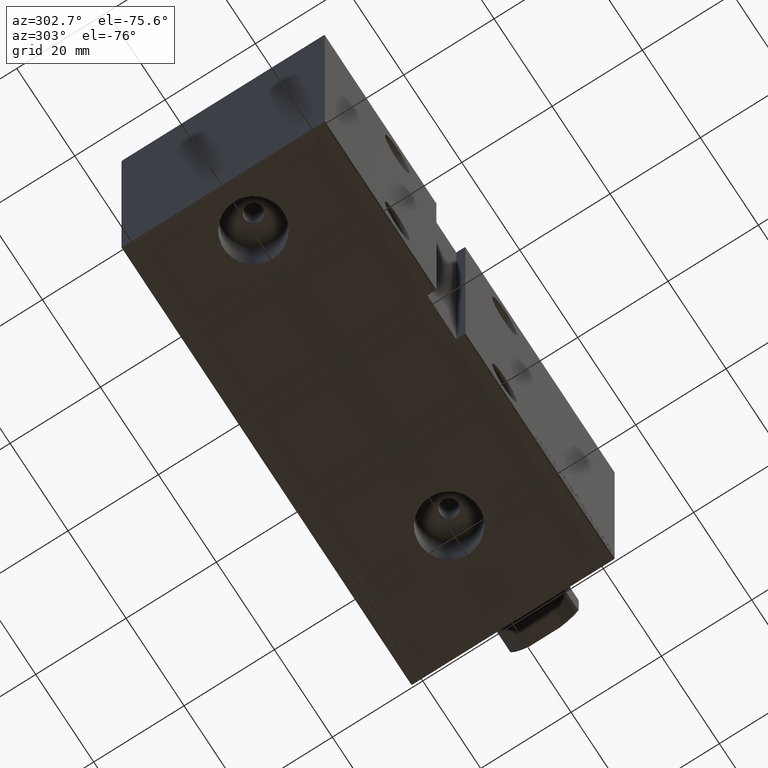
[diagram: clean part render]
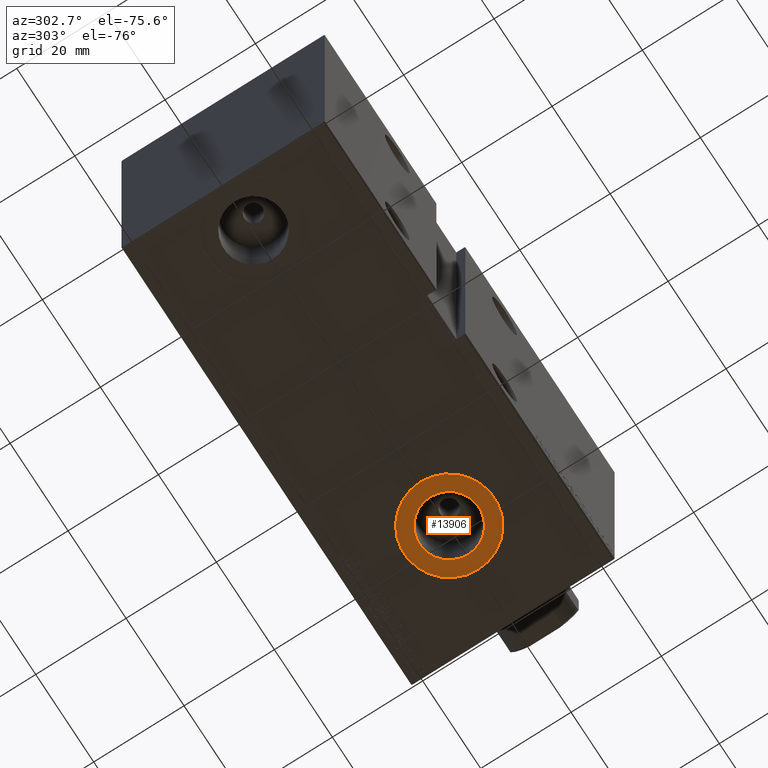
[diagram: same view with one face highlighted and labeled with its STEP entity id]
A machine part, auxiliary view. The second image highlights one B-rep face of the part: STEP entity #13906.
In plain terms, the highlighted planar face has unit normal (-0, 0, -1).
Its self-contained STEP definition (entity closure, byte-faithful):
#433 = DIRECTION ( 'NONE',  ( -1.000000000000000000, 0.000000000000000000, 0.000000000000000000 ) ) ;
#797 = FACE_OUTER_BOUND ( 'NONE', #22101, .T. ) ;
#1739 = CARTESIAN_POINT ( 'NONE',  ( 22.00000000000000000, -3.594347949397319039E-15, -32.39999999999999858 ) ) ;
#2581 = VERTEX_POINT ( 'NONE', #29615 ) ;
#3536 = ORIENTED_EDGE ( 'NONE', *, *, #19292, .F. ) ;
#3891 = CARTESIAN_POINT ( 'NONE',  ( 15.41999999999999638, -3.594347949397319039E-15, -32.39999999999999858 ) ) ;
#4336 = CARTESIAN_POINT ( 'NONE',  ( 22.00000000000000000, -3.594347949397319039E-15, -32.39999999999999858 ) ) ;
#5023 = DIRECTION ( 'NONE',  ( -1.000000000000000000, 0.000000000000000000, 0.000000000000000000 ) ) ;
#6185 = CARTESIAN_POINT ( 'NONE',  ( 22.00000000000000000, -3.594347949397319039E-15, -32.39999999999999858 ) ) ;
#7798 = CIRCLE ( 'NONE', #10553, 10.00000000000000000 ) ;
#9069 = CARTESIAN_POINT ( 'NONE',  ( 28.58000000000000185, -2.788530355558360786E-15, -32.39999999999999858 ) ) ;
#9560 = VERTEX_POINT ( 'NONE', #9069 ) ;
#10553 = AXIS2_PLACEMENT_3D ( 'NONE', #6185, #35684, #19508 ) ;
#10827 = DIRECTION ( 'NONE',  ( -1.000000000000000000, 0.000000000000000000, -0.000000000000000000 ) ) ;
#11014 = ORIENTED_EDGE ( 'NONE', *, *, #18774, .F. ) ;
#12569 = VERTEX_POINT ( 'NONE', #3891 ) ;
#13126 = AXIS2_PLACEMENT_3D ( 'NONE', #1739, #15054, #5023 ) ;
#13906 = ADVANCED_FACE ( 'NONE', ( #30712, #797 ), #14111, .T. ) ;
#14111 = PLANE ( 'NONE',  #36033 ) ;
#15054 = DIRECTION ( 'NONE',  ( 0.000000000000000000, 0.000000000000000000, -1.000000000000000000 ) ) ;
#15495 = CIRCLE ( 'NONE', #25960, 10.00000000000000000 ) ;
#16619 = AXIS2_PLACEMENT_3D ( 'NONE', #4336, #23543, #17656 ) ;
#17656 = DIRECTION ( 'NONE',  ( -1.000000000000000000, 0.000000000000000000, 0.000000000000000000 ) ) ;
#18774 = EDGE_CURVE ( 'NONE', #9560, #12569, #34039, .T. ) ;
#19292 = EDGE_CURVE ( 'NONE', #12569, #9560, #41067, .T. ) ;
#19508 = DIRECTION ( 'NONE',  ( -1.000000000000000000, 0.000000000000000000, 0.000000000000000000 ) ) ;
#22101 = EDGE_LOOP ( 'NONE', ( #22346, #28687 ) ) ;
#22346 = ORIENTED_EDGE ( 'NONE', *, *, #35617, .T. ) ;
#23543 = DIRECTION ( 'NONE',  ( 0.000000000000000000, 0.000000000000000000, -1.000000000000000000 ) ) ;
#25960 = AXIS2_PLACEMENT_3D ( 'NONE', #30579, #30356, #433 ) ;
#27424 = CARTESIAN_POINT ( 'NONE',  ( 0.000000000000000000, 0.000000000000000000, -32.39999999999999858 ) ) ;
#28687 = ORIENTED_EDGE ( 'NONE', *, *, #38568, .T. ) ;
#29615 = CARTESIAN_POINT ( 'NONE',  ( 32.00000000000000000, -2.369701150249966375E-15, -32.39999999999999858 ) ) ;
#29853 = VERTEX_POINT ( 'NONE', #34653 ) ;
#30356 = DIRECTION ( 'NONE',  ( 0.000000000000000000, 0.000000000000000000, -1.000000000000000000 ) ) ;
#30579 = CARTESIAN_POINT ( 'NONE',  ( 22.00000000000000000, -3.594347949397319039E-15, -32.39999999999999858 ) ) ;
#30712 = FACE_BOUND ( 'NONE', #42445, .T. ) ;
#34039 = CIRCLE ( 'NONE', #13126, 6.580000000000002736 ) ;
#34653 = CARTESIAN_POINT ( 'NONE',  ( 11.99999999999999822, -3.594347949397319039E-15, -32.39999999999999858 ) ) ;
#35617 = EDGE_CURVE ( 'NONE', #29853, #2581, #15495, .T. ) ;
#35684 = DIRECTION ( 'NONE',  ( 0.000000000000000000, 0.000000000000000000, -1.000000000000000000 ) ) ;
#36033 = AXIS2_PLACEMENT_3D ( 'NONE', #27424, #40776, #10827 ) ;
#38568 = EDGE_CURVE ( 'NONE', #2581, #29853, #7798, .T. ) ;
#40776 = DIRECTION ( 'NONE',  ( 0.000000000000000000, 0.000000000000000000, -1.000000000000000000 ) ) ;
#41067 = CIRCLE ( 'NONE', #16619, 6.580000000000002736 ) ;
#42445 = EDGE_LOOP ( 'NONE', ( #3536, #11014 ) ) ;